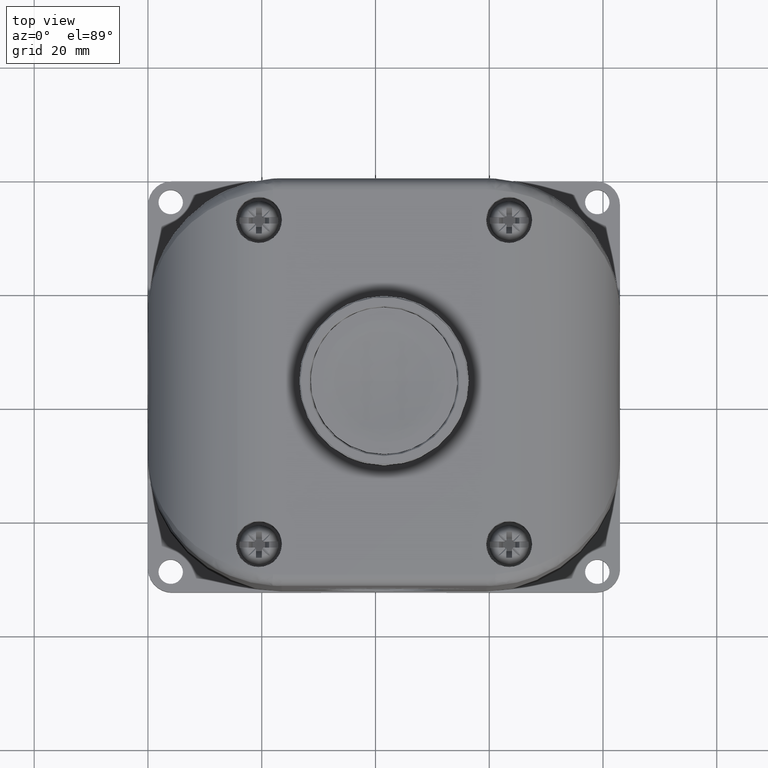
[diagram: clean part render]
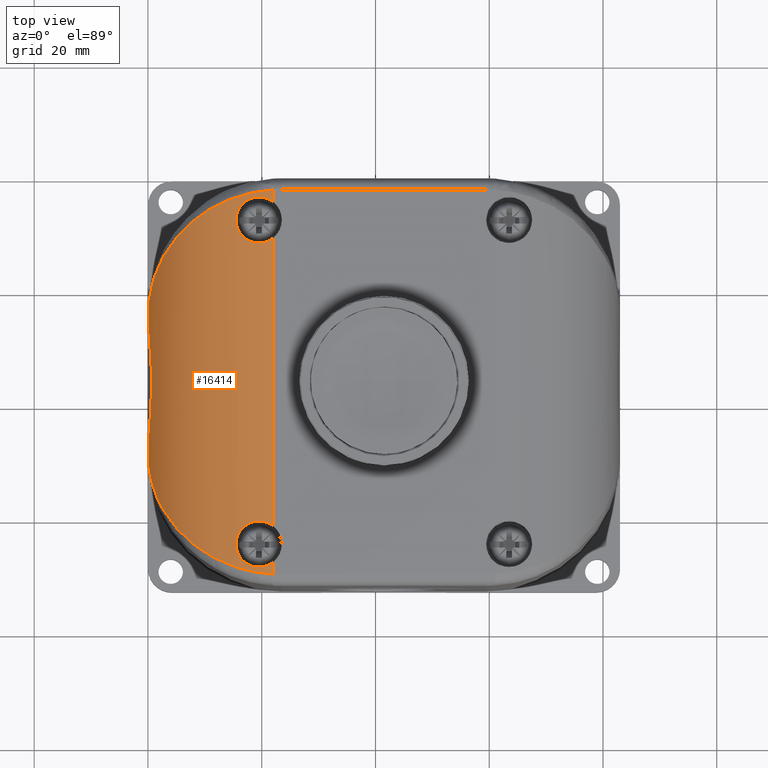
[diagram: same view with one face highlighted and labeled with its STEP entity id]
A machine part, top view. The second image highlights one B-rep face of the part: STEP entity #16414.
In plain terms, the highlighted cylindrical surface (partial cylindrical patch) has radius 22 mm, axis along (0, 1, 0).
Its self-contained STEP definition (entity closure, byte-faithful):
#22 = CARTESIAN_POINT ( 'NONE',  ( 0.06668072959416404544, -2.222230829088615689, 1.566552452995546130 ) ) ;
#30 = CARTESIAN_POINT ( 'NONE',  ( 0.8661417322834669141, -0.1756531276583662704, 2.098425196850787433 ) ) ;
#62 = CARTESIAN_POINT ( 'NONE',  ( 0.6111554180205578390, -2.515317330673027651, 2.060042306304008974 ) ) ;
#174 = CARTESIAN_POINT ( 'NONE',  ( 0.6127212680884354112, -2.508039686794422796, 2.060525093719621559 ) ) ;
#258 = CARTESIAN_POINT ( 'NONE',  ( 0.4844977988254161594, -2.651721927264885537, 2.009811351903006749 ) ) ;
#293 = CARTESIAN_POINT ( 'NONE',  ( 0.7469520531852821277, -2.386969902080728012, 2.090216910384535609 ) ) ;
#395 = CARTESIAN_POINT ( 'NONE',  ( 0.001841612179827192049, -0.9893373802624196856, 1.288735238603178734 ) ) ;
#452 = CARTESIAN_POINT ( 'NONE',  ( 0.001841612179827738487, -1.423117759614849209, 1.288735238603178068 ) ) ;
#487 = CARTESIAN_POINT ( 'NONE',  ( 0.6700205867451447528, -0.1246130479687093950, 2.075929787452275299 ) ) ;
#512 = CARTESIAN_POINT ( 'NONE',  ( 0.001841612179827738487, -1.856898138967279399, 1.288735238603178734 ) ) ;
#600 = CARTESIAN_POINT ( 'NONE',  ( 0.4536305222287483341, -2.635666911687115643, 1.993919880709211334 ) ) ;
#623 = CARTESIAN_POINT ( 'NONE',  ( 0.01495228573200169629, -1.670657243704145811, 1.392656594265216929 ) ) ;
#701 = VECTOR ( 'NONE', #16290, 39.37007874015748143 ) ;
#707 = CARTESIAN_POINT ( 'NONE',  ( 0.2629304045776457710, -0.3480646524808639342, 1.853998062563575910 ) ) ;
#739 = CARTESIAN_POINT ( 'NONE',  ( 0.6090449587852596602, -0.2860909264626071424, 2.059389243528789493 ) ) ;
#745 = CARTESIAN_POINT ( 'NONE',  ( 0.003067005541319931406, -1.956827185950365866, 1.305109946707750490 ) ) ;
#802 = DIRECTION ( 'NONE',  ( 0.000000000000000000, -1.000000000000000000, -0.000000000000000000 ) ) ;
#832 = CARTESIAN_POINT ( 'NONE',  ( 0.03516580050898208964, -0.7105492230839642875, 1.476580539457357011 ) ) ;
#864 = CARTESIAN_POINT ( 'NONE',  ( 0.002106694600387132906, -1.934398326632812415, 1.292659210045730367 ) ) ;
#943 = CARTESIAN_POINT ( 'NONE',  ( 0.3360193584619520224, -0.2865094057192970056, 1.917244771908074519 ) ) ;
#1058 = CARTESIAN_POINT ( 'NONE',  ( 0.2151892366006631918, -0.3966211325848575386, 1.803652474589092281 ) ) ;
#1172 = CARTESIAN_POINT ( 'NONE',  ( 0.2187095246251828939, -0.3927815757087804172, 1.807642949179821157 ) ) ;
#1201 = CARTESIAN_POINT ( 'NONE',  ( 0.7469520531852821277, -0.1428754138917512628, 2.090216910384535609 ) ) ;
#1244 = AXIS2_PLACEMENT_3D ( 'NONE', #2061, #20173, #18728 ) ;
#1289 = CARTESIAN_POINT ( 'NONE',  ( 0.01928830885277802581, -0.7714800606352731904, 1.414091893635173625 ) ) ;
#1323 = CARTESIAN_POINT ( 'NONE',  ( 0.01714522358479216718, -2.064557551439216709, 1.403766628772967318 ) ) ;
#1408 = CARTESIAN_POINT ( 'NONE',  ( 0.003311637220492121610, -0.8854205494936859822, 1.307954879135933224 ) ) ;
#1440 = CARTESIAN_POINT ( 'NONE',  ( 0.04122882106405549585, -2.155045456480146449, 1.496605587609658450 ) ) ;
#1530 = CARTESIAN_POINT ( 'NONE',  ( 0.006387386884334493760, -0.8502011514912803936, 1.337278563807178244 ) ) ;
#1563 = CARTESIAN_POINT ( 'NONE',  ( 0.02194741050311233704, -2.086863128788739363, 1.426391434814828996 ) ) ;
#1564 = CARTESIAN_POINT ( 'NONE',  ( 0.6725834062886715259, -0.4290560969259828439, 2.076543903226812482 ) ) ;
#1606 = VERTEX_POINT ( 'NONE', #6899 ) ;
#1627 = CARTESIAN_POINT ( 'NONE',  ( 0.6090373965461924888, -2.560042691810697768, 2.059386875227419811 ) ) ;
#1648 = CARTESIAN_POINT ( 'NONE',  ( 0.005571515679636032323, -0.8575536688897263948, 1.330580166234773820 ) ) ;
#1680 = CARTESIAN_POINT ( 'NONE',  ( 0.1218463973847920268, -2.326377845508118103, 1.675257610691786470 ) ) ;
#1765 = CARTESIAN_POINT ( 'NONE',  ( 0.009689528871952787087, -0.8242846881517161828, 1.361603842302506751 ) ) ;
#1798 = CARTESIAN_POINT ( 'NONE',  ( 0.09324676695887658406, -2.276703817704357480, 1.623422627752472813 ) ) ;
#2033 = CARTESIAN_POINT ( 'NONE',  ( 0.6049301743320297797, -2.702060913995989022, 2.058250194715752102 ) ) ;
#2061 = CARTESIAN_POINT ( 'NONE',  ( 0.8661417322834645827, -1.423117759614849209, 1.232283464566928943 ) ) ;
#2067 = CARTESIAN_POINT ( 'NONE',  ( 0.6411967913012915909, -2.448163876830064201, 2.068719608081711847 ) ) ;
#2143 = CARTESIAN_POINT ( 'NONE',  ( 0.8326782048970490235, -0.09471166219700458133, 2.098425196850393970 ) ) ;
#2149 = CARTESIAN_POINT ( 'NONE',  ( 0.6391381393690422907, -2.712946202279961305, 2.068214057782333359 ) ) ;
#2237 = CARTESIAN_POINT ( 'NONE',  ( 0.8661417322834666921, -0.4264879033823556487, 2.098425196850787433 ) ) ;
#2266 = CARTESIAN_POINT ( 'NONE',  ( 0.6948248039690440025, -0.1182944640209215165, 2.081387288020791537 ) ) ;
#2271 = CARTESIAN_POINT ( 'NONE',  ( 0.3259294149515184480, -2.551984478871453188, 1.909330076594239589 ) ) ;
#2290 = CARTESIAN_POINT ( 'NONE',  ( 0.009640883770111510417, -1.742034843767567009, 1.361488096049578544 ) ) ;
#2385 = CARTESIAN_POINT ( 'NONE',  ( 0.6803427976469003102, -0.1219138348193207211, 2.078280878011764976 ) ) ;
#2409 = CARTESIAN_POINT ( 'NONE',  ( 0.01097847306639610290, -1.724595519023684576, 1.369977639738063635 ) ) ;
#2494 = CARTESIAN_POINT ( 'NONE',  ( 0.2166540757003893036, -0.3950186641030834500, 1.805318072004846508 ) ) ;
#2524 = CARTESIAN_POINT ( 'NONE',  ( 0.02453863454552830323, -1.383614860935654667, 1.436992346969368395 ) ) ;
#2613 = CARTESIAN_POINT ( 'NONE',  ( 0.04038588785365571782, -0.6939003330629707200, 1.493802092324395092 ) ) ;
#2652 = CARTESIAN_POINT ( 'NONE',  ( 0.003491060863734994375, -1.963817028238295181, 1.310065458575435882 ) ) ;
#2696 = ORIENTED_EDGE ( 'NONE', *, *, #9491, .T. ) ;
#2736 = CARTESIAN_POINT ( 'NONE',  ( 0.4865929929426930367, -0.1934728455591555041, 2.010836264127649375 ) ) ;
#2767 = CARTESIAN_POINT ( 'NONE',  ( 0.006018173853125272608, -1.992659120986880916, 1.334215083290410497 ) ) ;
#2802 = CARTESIAN_POINT ( 'NONE',  ( 0.8661417322834642496, -0.09256890255721490768, 2.098425196850393970 ) ) ;
#2843 = CARTESIAN_POINT ( 'NONE',  ( 0.3964375100164947430, -0.2442628138977407937, 1.960156872947757645 ) ) ;
#2868 = ORIENTED_EDGE ( 'NONE', *, *, #13669, .F. ) ;
#2877 = CARTESIAN_POINT ( 'NONE',  ( 0.002179727015959355158, -1.936887845561044541, 1.293693282701580127 ) ) ;
#2961 = CARTESIAN_POINT ( 'NONE',  ( 0.4989046385369944048, -0.1874683671449827449, 2.016736657529302867 ) ) ;
#2985 = CARTESIAN_POINT ( 'NONE',  ( 0.6085173729111068575, -0.3010705155203608485, 2.059224326939192551 ) ) ;
#3078 = CARTESIAN_POINT ( 'NONE',  ( 0.004940162649394097202, -0.8641853800983396727, 1.324803283652944197 ) ) ;
#3098 = VECTOR ( 'NONE', #7962, 39.37007874015748143 ) ;
#3115 = CARTESIAN_POINT ( 'NONE',  ( 0.002974629534111853605, -1.955231762926801009, 1.304010262587214974 ) ) ;
#3176 = CARTESIAN_POINT ( 'NONE',  ( 0.6725834062886721920, -2.673150585114959288, 2.076543903226812926 ) ) ;
#3195 = CARTESIAN_POINT ( 'NONE',  ( 0.006412864272206790853, -0.8499724481485785299, 1.337487116108978302 ) ) ;
#3222 = CARTESIAN_POINT ( 'NONE',  ( 0.8661417322834669141, -0.1756531276583662704, 2.098425196850787433 ) ) ;
#3229 = CARTESIAN_POINT ( 'NONE',  ( 0.01413497542732325939, -2.049002900311323927, 1.388155252952718355 ) ) ;
#3293 = CARTESIAN_POINT ( 'NONE',  ( 0.8205204874370860546, -2.695772820338141251, 2.097250826054517958 ) ) ;
#3317 = CARTESIAN_POINT ( 'NONE',  ( 0.02138658299294129983, -0.7620091516656880559, 1.423716255014003229 ) ) ;
#3352 = CARTESIAN_POINT ( 'NONE',  ( 0.1222284157239807295, -2.326992693454388750, 1.675898857821539911 ) ) ;
#3420 = CARTESIAN_POINT ( 'NONE',  ( 0.6502906128702815591, -2.653767403531964053, 2.071173551909852861 ) ) ;
#3475 = CARTESIAN_POINT ( 'NONE',  ( 0.01671986241153388189, -2.062460894755395291, 1.401650766611766130 ) ) ;
#3476 = CARTESIAN_POINT ( 'NONE',  ( 0.7767494861681495388, -0.4603881521663730769, 2.093831852209592892 ) ) ;
#3510 = CARTESIAN_POINT ( 'NONE',  ( 0.7913578737794653151, -2.387344832918411264, 2.095222525144633696 ) ) ;
#3583 = CARTESIAN_POINT ( 'NONE',  ( 0.04998219412995857924, -2.179840632931082212, 1.522369127495162733 ) ) ;
#3584 = CARTESIAN_POINT ( 'NONE',  ( 0.6111224735997493607, -0.3307337894535473111, 2.060032139637767656 ) ) ;
#3708 = CARTESIAN_POINT ( 'NONE',  ( 0.8133088647411346184, -0.4540116201021514031, 2.096842758641018989 ) ) ;
#3743 = CARTESIAN_POINT ( 'NONE',  ( 0.6911618647547072003, -2.405243085505956113, 2.080593241783398550 ) ) ;
#3868 = CARTESIAN_POINT ( 'NONE',  ( 0.6188970401195961202, -2.486657168306560806, 2.062397958311684931 ) ) ;
#3935 = VERTEX_POINT ( 'NONE', #2802 ) ;
#3969 = CARTESIAN_POINT ( 'NONE',  ( 0.02357470395147630293, -1.500906264650612831, 1.432994763971830565 ) ) ;
#4086 = CARTESIAN_POINT ( 'NONE',  ( 0.01856980597421693108, -1.230980398208532556, 1.410740652623071467 ) ) ;
#4100 = CARTESIAN_POINT ( 'NONE',  ( 0.8661417322834666921, -2.419747615847342548, 2.098425196850787433 ) ) ;
#4175 = CARTESIAN_POINT ( 'NONE',  ( 0.7489292818998030121, -0.1068327962199640685, 2.090622737733059289 ) ) ;
#4180 = CARTESIAN_POINT ( 'NONE',  ( 0.7318270322642850267, -2.738331237124890016, 2.090626919050186938 ) ) ;
#4287 = CARTESIAN_POINT ( 'NONE',  ( 0.2157749358729827982, -0.3959798241427270882, 1.804319064312383869 ) ) ;
#4309 = CARTESIAN_POINT ( 'NONE',  ( 0.01363177683542894300, -1.688942486081923544, 1.385550100377878735 ) ) ;
#4395 = CARTESIAN_POINT ( 'NONE',  ( 0.1403723760386066943, -0.4912950685527302519, 1.705045898738117627 ) ) ;
#4429 = CARTESIAN_POINT ( 'NONE',  ( 0.003107901000629852660, -1.957515747461784805, 1.305591941913299303 ) ) ;
#4493 = CARTESIAN_POINT ( 'NONE',  ( 0.001841612179827192049, -0.9893373802624196856, 1.288735238603178734 ) ) ;
#4506 = CARTESIAN_POINT ( 'NONE',  ( 0.1819407421365874522, -0.4347133812064869485, 1.764026557412148533 ) ) ;
#4533 = CARTESIAN_POINT ( 'NONE',  ( 0.6911618647547074223, -0.1611485973169795027, 2.080593241783398550 ) ) ;
#4538 = CARTESIAN_POINT ( 'NONE',  ( 0.002195227101025006185, -1.937388755247515970, 1.293910962424854150 ) ) ;
#4619 = CARTESIAN_POINT ( 'NONE',  ( 0.06575158518986988498, -0.6270193950193536647, 1.563416835912435188 ) ) ;
#4652 = CARTESIAN_POINT ( 'NONE',  ( 0.005700370728519489269, -1.989644078267795102, 1.331512063120437128 ) ) ;
#4731 = CARTESIAN_POINT ( 'NONE',  ( 0.4893581734577517883, -0.1921080582985303653, 2.012179245163189467 ) ) ;
#4833 = CARTESIAN_POINT ( 'NONE',  ( 0.6111224735997496937, -2.574828277642525531, 2.060032139637768100 ) ) ;
#4850 = CARTESIAN_POINT ( 'NONE',  ( 0.03075545340105251269, -0.7252501675129466863, 1.461402376867257713 ) ) ;
#4881 = CARTESIAN_POINT ( 'NONE',  ( 0.002801737124562478712, -1.952085798892000845, 1.301910811266506540 ) ) ;
#4916 = CARTESIAN_POINT ( 'NONE',  ( 0.001841612179827192049, -1.915243743866817727, 1.288735238603178068 ) ) ;
#4951 = ORIENTED_EDGE ( 'NONE', *, *, #19881, .T. ) ;
#4976 = CARTESIAN_POINT ( 'NONE',  ( 0.006593813442647857188, -0.8483630860398619911, 1.338957918653440160 ) ) ;
#5001 = CARTESIAN_POINT ( 'NONE',  ( 0.7692112186359622017, -0.1415099728692263970, 2.093016579969819269 ) ) ;
#5009 = CARTESIAN_POINT ( 'NONE',  ( 0.03764124014285433889, -2.143969326075107595, 1.485130129110526331 ) ) ;
#5025 = ORIENTED_EDGE ( 'NONE', *, *, #7627, .T. ) ;
#5064 = CARTESIAN_POINT ( 'NONE',  ( 0.7692252846355088769, -2.704727946057621679, 2.093018637006753391 ) ) ;
#5086 = CARTESIAN_POINT ( 'NONE',  ( 0.003468804263948879925, -0.8829972361969852246, 1.309735358865594224 ) ) ;
#5124 = CARTESIAN_POINT ( 'NONE',  ( 0.02840922800491292935, -2.112282457298313876, 1.452448510443946184 ) ) ;
#5251 = CARTESIAN_POINT ( 'NONE',  ( 0.2109319373285455101, -2.444917006241889457, 1.798769106281482122 ) ) ;
#5293 = CARTESIAN_POINT ( 'NONE',  ( 0.7544173661206144965, -2.386163104624008824, 2.091221580168189043 ) ) ;
#5339 = EDGE_CURVE ( 'NONE', #1606, #17475, #17959, .T. ) ;
#5342 = CARTESIAN_POINT ( 'NONE',  ( 0.002236802406287917346, -0.9075591413723241851, 1.294491026462898153 ) ) ;
#5374 = CARTESIAN_POINT ( 'NONE',  ( 0.2332745324844928969, -2.469481650685676932, 1.824303599944329335 ) ) ;
#5381 = ORIENTED_EDGE ( 'NONE', *, *, #5339, .F. ) ;
#5452 = DIRECTION ( 'NONE',  ( -0.000000000000000000, -1.000000000000000000, -0.000000000000000000 ) ) ;
#5496 = CARTESIAN_POINT ( 'NONE',  ( 0.006327637489400511975, -1.995499639928518087, 1.336788167541607786 ) ) ;
#5618 = CARTESIAN_POINT ( 'NONE',  ( 0.3328871155022073980, -2.557346881135732719, 1.914809841914109745 ) ) ;
#5638 = CARTESIAN_POINT ( 'NONE',  ( 0.02434553202070558267, -1.462088223962763056, 1.436203498315902882 ) ) ;
#5742 = CARTESIAN_POINT ( 'NONE',  ( 0.4215827371818854363, -2.617502393411472728, 1.975781344775984660 ) ) ;
#5853 = CARTESIAN_POINT ( 'NONE',  ( 0.8661417322834645827, -1.423117759614849209, 2.098425196850393970 ) ) ;
#5966 = CARTESIAN_POINT ( 'NONE',  ( 0.6048377028080650364, -0.1437922342536107623, 2.058684024141150370 ) ) ;
#6084 = CARTESIAN_POINT ( 'NONE',  ( 0.6639811400580685197, -2.720002525229793466, 2.074502892225129624 ) ) ;
#6199 = CARTESIAN_POINT ( 'NONE',  ( 0.05305894278109316714, -0.6580783604178528368, 1.531025874868270575 ) ) ;
#6226 = CARTESIAN_POINT ( 'NONE',  ( 0.6726007365587882703, -0.1730737280484004881, 2.076547688764718291 ) ) ;
#6230 = CARTESIAN_POINT ( 'NONE',  ( 0.001961098896333543940, -1.928082369085000858, 1.290537534212114590 ) ) ;
#6318 = CARTESIAN_POINT ( 'NONE',  ( 0.2228368030460637639, -0.3883298723796335672, 1.812268120594828114 ) ) ;
#6343 = CARTESIAN_POINT ( 'NONE',  ( 0.6368620901716152138, -0.2100143708534818743, 2.067537269189749338 ) ) ;
#6432 = CARTESIAN_POINT ( 'NONE',  ( 0.1104171091250973347, -0.5381918457097129016, 1.656136480007502687 ) ) ;
#6547 = CARTESIAN_POINT ( 'NONE',  ( 0.2148634714822769687, -0.3969784201646139321, 1.803281084816593438 ) ) ;
#6575 = CARTESIAN_POINT ( 'NONE',  ( 0.6111554180205579501, -0.2712228424840500418, 2.060042306304008530 ) ) ;
#6640 = CARTESIAN_POINT ( 'NONE',  ( 0.6667009104390833052, -2.668550439203207336, 2.075169313886292777 ) ) ;
#6660 = CARTESIAN_POINT ( 'NONE',  ( 0.01829001995562692245, -0.7761601688407657740, 1.409349239104531248 ) ) ;
#6774 = CARTESIAN_POINT ( 'NONE',  ( 0.002938455177338896579, -0.8914969400314728398, 1.303617612783680713 ) ) ;
#6808 = CARTESIAN_POINT ( 'NONE',  ( 0.01723116111628603467, -2.064978305770995615, 1.404191549162344899 ) ) ;
#6893 = CARTESIAN_POINT ( 'NONE',  ( 0.02759000802795056814, -0.7368330981657280621, 1.449477108665896852 ) ) ;
#6899 = CARTESIAN_POINT ( 'NONE',  ( 0.8661417322834669141, -2.670582391571332259, 2.098425196850787433 ) ) ;
#6930 = CARTESIAN_POINT ( 'NONE',  ( 0.01501890704692845913, -2.053798567373785744, 1.392941095868765577 ) ) ;
#6931 = CARTESIAN_POINT ( 'NONE',  ( 0.7692252846355086549, -0.4606334578686454573, 2.093018637006753835 ) ) ;
#7018 = CARTESIAN_POINT ( 'NONE',  ( 0.02336684735894668102, -0.7537014710198722822, 1.432201290097663726 ) ) ;
#7053 = CARTESIAN_POINT ( 'NONE',  ( 0.006303352515200720541, -1.995279798930462256, 1.336588168333578297 ) ) ;
#7172 = CARTESIAN_POINT ( 'NONE',  ( 0.2127420073568618009, -2.446921566156667893, 1.800853061853247894 ) ) ;
#7173 = CARTESIAN_POINT ( 'NONE',  ( 0.6249487372184516776, -0.3731394959535539457, 2.064206118165317960 ) ) ;
#7289 = CARTESIAN_POINT ( 'NONE',  ( 0.2528008908898430329, -2.488946137196759167, 1.844476479491946153 ) ) ;
#7411 = CARTESIAN_POINT ( 'NONE',  ( 0.6277165968349019964, -2.709413271700443548, 2.065000529012364971 ) ) ;
#7627 = EDGE_CURVE ( 'NONE', #22946, #15856, #15950, .T. ) ;
#7761 = CARTESIAN_POINT ( 'NONE',  ( 0.6679582204730580841, -0.1251631294307466724, 2.075447693819880257 ) ) ;
#7789 = CARTESIAN_POINT ( 'NONE',  ( 0.02454428000673034710, -1.442449904734850685, 1.437015554840284537 ) ) ;
#7876 = CARTESIAN_POINT ( 'NONE',  ( 0.5598072040365266178, -0.1607815647096981215, 2.042601119735038662 ) ) ;
#7906 = CARTESIAN_POINT ( 'NONE',  ( 0.02080029465139045242, -1.577489249876136368, 1.421073909155596837 ) ) ;
#7962 = DIRECTION ( 'NONE',  ( -0.000000000000000000, -1.000000000000000000, -0.000000000000000000 ) ) ;
#7995 = CARTESIAN_POINT ( 'NONE',  ( 0.05801324740883753023, -0.6456917170297087338, 1.543941141165006359 ) ) ;
#8014 = ORIENTED_EDGE ( 'NONE', *, *, #8038, .T. ) ;
#8038 = EDGE_CURVE ( 'NONE', #3935, #18886, #14520, .T. ) ;
#8105 = CARTESIAN_POINT ( 'NONE',  ( 0.4342555384053536360, -0.2209125017929190193, 1.983653436353031818 ) ) ;
#8133 = CARTESIAN_POINT ( 'NONE',  ( 0.004967025211732417969, -1.982145295057053058, 1.324955265658127379 ) ) ;
#8191 = CARTESIAN_POINT ( 'NONE',  ( 0.001841612179827738487, -1.856898138967279399, 1.288735238603178734 ) ) ;
#8219 = CARTESIAN_POINT ( 'NONE',  ( 0.1513583501783736796, -0.4753898956740735815, 1.721632139815546303 ) ) ;
#8255 = VECTOR ( 'NONE', #5452, 39.37007874015748143 ) ;
#8327 = CARTESIAN_POINT ( 'NONE',  ( 0.3367672010064692856, -0.2859430273797861632, 1.917822908666178661 ) ) ;
#8371 = CARTESIAN_POINT ( 'NONE',  ( 0.6085173729111068575, -0.3010705155203608485, 2.059224326939192551 ) ) ;
#8441 = CARTESIAN_POINT ( 'NONE',  ( 0.05947551391623354805, -0.6420747848030463611, 1.547712835560338229 ) ) ;
#8470 = CARTESIAN_POINT ( 'NONE',  ( 0.7544173661206150516, -0.1420686164350324354, 2.091221580168189043 ) ) ;
#8555 = CARTESIAN_POINT ( 'NONE',  ( 0.01455538379879572214, -0.7943015168519412805, 1.391015471066883613 ) ) ;
#8592 = CARTESIAN_POINT ( 'NONE',  ( 0.01146569534590667627, -2.033546146745440542, 1.372864351193517463 ) ) ;
#8600 = B_SPLINE_CURVE_WITH_KNOTS ( 'NONE', 3,
 ( #19308, #15734, #23013, #6230, #13949, #864, #19429, #2877, #4538, #21219, #13485, #11820, #13717, #4881, #3115, #745, #4429, #20761, #20990, #2652, #9916, #17175, #8133, #15382, #4652, #2767, #11931, #12288, #7053, #5496, #18115, #21347, #19900, #8592, #8709, #3229, #6930, #10860, #3475, #17879, #1323, #6808, #12641, #17759, #1563, #8831, #5124, #14066, #21462, #15973, #10743, #21714, #5009, #1440, #12405, #3583, #21832, #19540, #23134, #19660, #8956, #22, #10501, #1798, #12519, #17993, #9072, #15848, #23260, #14189, #1680, #3352, #10619, #16094, #16216, #23384, #16330, #14308, #23506, #21586, #5251, #7172, #19782, #12753, #14425, #5374, #7289, #14544, #20020, #10382, #17641, #2271, #11215, #5618, #11455, #18697, #9543, #13226, #18471, #5742, #10976, #600, #16567, #16800, #12996, #15013, #258, #20386, #14778, #18232, #22080, #22419, #2033, #7411, #2149, #18355, #15128, #9421, #6084, #20264, #4180, #11098, #13344 ),
 .UNSPECIFIED., .F., .F.,
 ( 4, 2, 1, 1, 1, 2, 2, 2, 1, 1, 1, 2, 2, 2, 2, 1, 1, 1, 1, 2, 2, 2, 2, 1, 1, 1, 1, 2, 2, 2, 1, 1, 1, 2, 2, 2, 1, 1, 1, 2, 2, 2, 2, 1, 1, 1, 1, 2, 2, 2, 2, 1, 1, 1, 1, 2, 2, 2, 2, 1, 1, 1, 1, 2, 2, 2, 2, 1, 1, 1, 1, 2, 2, 2, 2, 1, 1, 1, 2, 2, 4 ),
 ( 0.000000000000000000, 0.007812499999993839997, 0.01171874999999082158, 0.01367187499998931410, 0.01464843749998865144, 0.01513671874998809286, 0.01562499999998753428, 0.02343749999998132744, 0.02734374999997845473, 0.02929687499997687961, 0.03027343749997609204, 0.03076171874997563754, 0.03124999999997518305, 0.04687499999995500821, 0.05468749999994471783, 0.05859374999993956917, 0.06054687499993698097, 0.06152343749993551686, 0.06201171874993494787, 0.06225585937493483685, 0.06249999999993471889, 0.09374999999993556543, 0.1093749999999359956, 0.1171874999999363703, 0.1210937499999365646, 0.1230468749999368144, 0.1240234374999366201, 0.1245117187499363842, 0.1249999999999361344, 0.1562499999999268918, 0.1718749999999220901, 0.1796874999999195088, 0.1835937499999183986, 0.1855468749999182043, 0.1874999999999179823, 0.2187499999999163447, 0.2343749999999155120, 0.2421874999999149292, 0.2460937499999144573, 0.2480468749999143740, 0.2499999999999143463, 0.3124999999999175659, 0.3437499999999191758, 0.3593749999999200084, 0.3671874999999203970, 0.3710937499999207856, 0.3730468749999209521, 0.3740234374999210631, 0.3749999999999211742, 0.4374999999999219513, 0.4687499999999223399, 0.4843749999999226730, 0.4921874999999230060, 0.4960937499999230060, 0.4980468749999228950, 0.4990234374999227840, 0.4999999999999227285, 0.5624999999999177325, 0.5937499999999154010, 0.6093749999999139577, 0.6171874999999129585, 0.6210937499999127365, 0.6230468749999121814, 0.6240234374999122924, 0.6249999999999124034, 0.6874999999999376055, 0.7187499999999504841, 0.7343749999999572564, 0.7421874999999605871, 0.7460937499999619194, 0.7480468749999623634, 0.7490234374999624745, 0.7499999999999625855, 0.8124999999999739098, 0.8437499999999796829, 0.8593749999999824585, 0.8671874999999835687, 0.8710937499999841238, 0.8730468749999845679, 0.8749999999999849010, 1.000000000000000000 ),
 .UNSPECIFIED. ) ;
#8657 = CARTESIAN_POINT ( 'NONE',  ( 0.8542576590813109050, -2.679908787729363251, 2.098425196850393082 ) ) ;
#8675 = CARTESIAN_POINT ( 'NONE',  ( 0.001841828049148678398, -0.9239390006351970719, 1.288738543652189428 ) ) ;
#8709 = CARTESIAN_POINT ( 'NONE',  ( 0.01245953654878545133, -2.039587833956062024, 1.378804179993215584 ) ) ;
#8710 = CARTESIAN_POINT ( 'NONE',  ( 0.8661417322834666921, -0.4264879033823556487, 2.098425196850787433 ) ) ;
#8776 = CARTESIAN_POINT ( 'NONE',  ( 0.8413564850316759269, -2.687355672329298173, 2.098182146856145458 ) ) ;
#8783 = VECTOR ( 'NONE', #13223, 39.37007874015748143 ) ;
#8799 = CARTESIAN_POINT ( 'NONE',  ( 0.002304949363058869573, -0.9055619894650400736, 1.295432310438345613 ) ) ;
#8831 = CARTESIAN_POINT ( 'NONE',  ( 0.02616767881312343988, -2.103724479404983416, 1.443660388706822228 ) ) ;
#8832 = CARTESIAN_POINT ( 'NONE',  ( 0.6502906128702817812, -0.4096729153429876091, 2.071173551909852417 ) ) ;
#8837 = EDGE_CURVE ( 'NONE', #21935, #21079, #17040, .T. ) ;
#8919 = CARTESIAN_POINT ( 'NONE',  ( 0.004160169365797937099, -0.8735085415469259207, 1.317112266328130721 ) ) ;
#8956 = CARTESIAN_POINT ( 'NONE',  ( 0.05710976054165210064, -2.198288129865812124, 1.541588209923444364 ) ) ;
#8957 = CARTESIAN_POINT ( 'NONE',  ( 0.7108928996926785482, -0.4506625509602775748, 2.084503996820070260 ) ) ;
#9026 = LINE ( 'NONE', #21909, #8255 ) ;
#9041 = CARTESIAN_POINT ( 'NONE',  ( 0.002516271874809164824, -0.9001967256225499314, 1.298265202631562865 ) ) ;
#9072 = CARTESIAN_POINT ( 'NONE',  ( 0.1120283339338624395, -2.310220319050889870, 1.658403227684009273 ) ) ;
#9086 = B_SPLINE_CURVE_WITH_KNOTS ( 'NONE', 3,
 ( #8710, #23261, #12642, #12754, #3708, #19783, #10620, #3476, #6931, #21464, #17994, #18116, #8957, #19901, #17881, #1564, #16217, #8832, #18234, #7173, #14426, #21715, #3584, #15129, #16682, #20145 ),
 .UNSPECIFIED., .F., .F.,
 ( 4, 2, 2, 2, 2, 2, 2, 2, 2, 2, 2, 2, 4 ),
 ( 1.304161371202573855E-16, 0.001134861824668662597, 0.001702292737002928302, 0.002269723649337194223, 0.002837154561671459494, 0.003404585474005725632, 0.004539447298674260077, 0.005106878211008525348, 0.005674309123342790619, 0.006809170948011320293, 0.007944032772679849100, 0.008511463685014118707, 0.009078894597348384846 ),
 .UNSPECIFIED. ) ;
#9110 = CARTESIAN_POINT ( 'NONE',  ( 0.6847471891410117362, -2.408961949764549804, 2.079240498308626339 ) ) ;
#9167 = VERTEX_POINT ( 'NONE', #4916 ) ;
#9340 = CARTESIAN_POINT ( 'NONE',  ( 0.7111060864151816929, -2.395479636505880805, 2.084544678014398134 ) ) ;
#9421 = CARTESIAN_POINT ( 'NONE',  ( 0.6620673134544026173, -2.719479358924865142, 2.074041209380371065 ) ) ;
#9491 = EDGE_CURVE ( 'NONE', #15739, #21935, #9086, .T. ) ;
#9543 = CARTESIAN_POINT ( 'NONE',  ( 0.3348395193226803568, -2.558835540549571519, 1.916330014393507142 ) ) ;
#9680 = CARTESIAN_POINT ( 'NONE',  ( 0.02152459155223845205, -1.287633214198650622, 1.424205414149508853 ) ) ;
#9763 = CARTESIAN_POINT ( 'NONE',  ( 0.1349515773415710662, -0.4993407235568174674, 1.696654880190145098 ) ) ;
#9883 = CARTESIAN_POINT ( 'NONE',  ( 0.04894961203095116176, -0.6690621056982219983, 1.519589278893925366 ) ) ;
#9916 = CARTESIAN_POINT ( 'NONE',  ( 0.003899485775766863786, -1.969613608934360771, 1.314541304790701748 ) ) ;
#10001 = CARTESIAN_POINT ( 'NONE',  ( 0.3839716860769418205, -0.2523709791552594672, 1.951962622884685805 ) ) ;
#10118 = CARTESIAN_POINT ( 'NONE',  ( 0.3405120112917421338, -0.2831209663116912023, 1.920702770897699363 ) ) ;
#10145 = CARTESIAN_POINT ( 'NONE',  ( 0.6251004410052539706, -0.2287402789924408431, 2.064249139571173064 ) ) ;
#10236 = CARTESIAN_POINT ( 'NONE',  ( 0.4925362150693371466, -0.1905510620934914301, 2.013710061553795949 ) ) ;
#10264 = CARTESIAN_POINT ( 'NONE',  ( 0.7250469596165671771, -0.1468133339915977942, 2.086983220119176696 ) ) ;
#10345 = CARTESIAN_POINT ( 'NONE',  ( 0.003184271608880845286, -0.8874614954386648158, 1.306485460303036472 ) ) ;
#10375 = CARTESIAN_POINT ( 'NONE',  ( 0.8204096317628268853, -0.1504267633095977830, 2.097244569625063892 ) ) ;
#10382 = CARTESIAN_POINT ( 'NONE',  ( 0.3088617695578599331, -2.538356647986454995, 1.895372549475944135 ) ) ;
#10464 = CARTESIAN_POINT ( 'NONE',  ( 0.01739266215865966497, -0.7804729570286056406, 1.404987099276469920 ) ) ;
#10501 = CARTESIAN_POINT ( 'NONE',  ( 0.07686398077680078877, -2.244555512323572088, 1.589861455184243377 ) ) ;
#10562 = CARTESIAN_POINT ( 'NONE',  ( 0.7469714852096157598, -2.703360503351357469, 2.090219218594270068 ) ) ;
#10584 = CARTESIAN_POINT ( 'NONE',  ( 0.03455055679514910938, -0.7125848706474721128, 1.474478135648456645 ) ) ;
#10619 = CARTESIAN_POINT ( 'NONE',  ( 0.1223946829250967955, -2.327259964338925347, 1.676177601286038099 ) ) ;
#10620 = CARTESIAN_POINT ( 'NONE',  ( 0.7915283417912050146, -0.4588656622867816615, 2.095237368245719711 ) ) ;
#10685 = CARTESIAN_POINT ( 'NONE',  ( 0.6249487372184507894, -2.617233984142530723, 2.064206118165317516 ) ) ;
#10743 = CARTESIAN_POINT ( 'NONE',  ( 0.03386415409143958555, -2.131356496240828235, 1.472108752223620920 ) ) ;
#10860 = CARTESIAN_POINT ( 'NONE',  ( 0.01613770803220338293, -2.059547746578449967, 1.398715832334957554 ) ) ;
#10976 = CARTESIAN_POINT ( 'NONE',  ( 0.4343304444839510836, -2.624962745625559979, 1.983253920563294415 ) ) ;
#10995 = CARTESIAN_POINT ( 'NONE',  ( 0.001841612179827192049, -0.9309917753628805803, 1.288735238603178068 ) ) ;
#11011 = CARTESIAN_POINT ( 'NONE',  ( 0.7250469596165667330, -2.390907822180575071, 2.086983220119176252 ) ) ;
#11080 = B_SPLINE_CURVE_WITH_KNOTS ( 'NONE', 3,
 ( #17467, #8657, #8776, #3293, #21405, #17939, #22849, #19488, #5064, #16037, #10562, #19258, #17818, #14012, #19724, #3176, #6640, #3420, #21290, #10685, #15798, #14133, #4833, #1627, #17704, #19377 ),
 .UNSPECIFIED., .F., .F.,
 ( 4, 2, 2, 2, 2, 2, 2, 2, 2, 2, 2, 2, 4 ),
 ( 1.241267076623636559E-16, 0.001134861824668647852, 0.001702292737002901631, 0.002269723649337155626, 0.002837154561671409187, 0.003404585474005663182, 0.004539447298674174208, 0.005106878211008440346, 0.005674309123342707352, 0.006809170948011264782, 0.007944032772679823079, 0.008511463685014101360, 0.009078894597348379641 ),
 .UNSPECIFIED. ) ;
#11098 = CARTESIAN_POINT ( 'NONE',  ( 0.7991929221750214696, -2.749379704340318309, 2.098425196850393970 ) ) ;
#11137 = CARTESIAN_POINT ( 'NONE',  ( 0.6251004410052536375, -2.472834767181417259, 2.064249139571172620 ) ) ;
#11215 = CARTESIAN_POINT ( 'NONE',  ( 0.3305645472577815047, -2.555566918347068839, 1.912991591419756165 ) ) ;
#11355 = CARTESIAN_POINT ( 'NONE',  ( 0.02372975983920159668, -1.344919695255675007, 1.433743545148280507 ) ) ;
#11455 = CARTESIAN_POINT ( 'NONE',  ( 0.3338835630233740748, -2.558107310127487377, 1.915586412689353812 ) ) ;
#11562 = CARTESIAN_POINT ( 'NONE',  ( 0.1228518866512448293, -0.5182413071731277743, 1.676942710329017316 ) ) ;
#11625 = ORIENTED_EDGE ( 'NONE', *, *, #20207, .T. ) ;
#11672 = CARTESIAN_POINT ( 'NONE',  ( 0.1230931840978583131, -0.5178547425097527190, 1.677345856665748203 ) ) ;
#11788 = CARTESIAN_POINT ( 'NONE',  ( 0.5448988047944555158, -0.1668262058218034083, 2.036809202536495889 ) ) ;
#11814 = CARTESIAN_POINT ( 'NONE',  ( 0.6188970401195957871, -0.2425626801175847502, 2.062397958311683599 ) ) ;
#11820 = CARTESIAN_POINT ( 'NONE',  ( 0.002437917174635186902, -1.944329586322660175, 1.297255138710769806 ) ) ;
#11900 = CARTESIAN_POINT ( 'NONE',  ( 0.05859710260768357520, -0.6442438960651571955, 1.545450874317812806 ) ) ;
#11931 = CARTESIAN_POINT ( 'NONE',  ( 0.006183065021602963084, -1.994183750870158756, 1.335593048950920458 ) ) ;
#12016 = CARTESIAN_POINT ( 'NONE',  ( 0.4600277232704113040, -0.2066445386133494988, 1.997868281788691469 ) ) ;
#12137 = CARTESIAN_POINT ( 'NONE',  ( 0.01756304682546144108, -0.7796460359976921106, 1.405822852039311011 ) ) ;
#12153 = CARTESIAN_POINT ( 'NONE',  ( 0.6085173729111068575, -2.545165003709337626, 2.059224326939192551 ) ) ;
#12253 = CARTESIAN_POINT ( 'NONE',  ( 0.002256609150573041147, -0.9069633594796889797, 1.294765898719175024 ) ) ;
#12288 = CARTESIAN_POINT ( 'NONE',  ( 0.006267035459765460739, -1.994950342942731547, 1.336288641402763711 ) ) ;
#12405 = CARTESIAN_POINT ( 'NONE',  ( 0.04699952291753255879, -2.171587585253189623, 1.513786644111892787 ) ) ;
#12439 = CARTESIAN_POINT ( 'NONE',  ( 0.6085173729111068575, -2.537717218982983969, 2.059224326939192107 ) ) ;
#12519 = CARTESIAN_POINT ( 'NONE',  ( 0.09889244740202095263, -2.287196799586012297, 1.634376330261018584 ) ) ;
#12557 = CARTESIAN_POINT ( 'NONE',  ( 0.7692112186359619797, -2.385604461058203007, 2.093016579969819269 ) ) ;
#12641 = CARTESIAN_POINT ( 'NONE',  ( 0.01728366614373079077, -2.065234718128599045, 1.404450572057515112 ) ) ;
#12642 = CARTESIAN_POINT ( 'NONE',  ( 0.8413564850316753718, -0.4432611841403224506, 2.098182146856145458 ) ) ;
#12753 = CARTESIAN_POINT ( 'NONE',  ( 0.2140371492868342329, -2.448349276744439695, 1.802337206234785549 ) ) ;
#12754 = CARTESIAN_POINT ( 'NONE',  ( 0.8205204874370852774, -0.4516783321491651404, 2.097250826054517070 ) ) ;
#12790 = CARTESIAN_POINT ( 'NONE',  ( 0.6668307867890511664, -2.421673828940606121, 2.075200010190961564 ) ) ;
#12900 = CARTESIAN_POINT ( 'NONE',  ( 0.01867239427389003059, -1.615114764924735491, 1.411624699434567365 ) ) ;
#12937 = CARTESIAN_POINT ( 'NONE',  ( 0.8661417322834666921, -2.419747615847342548, 2.098425196850787433 ) ) ;
#12996 = CARTESIAN_POINT ( 'NONE',  ( 0.4804142218592089564, -2.649678394863316466, 2.007797227999430056 ) ) ;
#13174 = VERTEX_POINT ( 'NONE', #12937 ) ;
#13223 = DIRECTION ( 'NONE',  ( 0.000000000000000000, -1.000000000000000000, -0.000000000000000000 ) ) ;
#13226 = CARTESIAN_POINT ( 'NONE',  ( 0.3591144811824232286, -2.577282458783615393, 1.935163262540559037 ) ) ;
#13341 = CARTESIAN_POINT ( 'NONE',  ( 0.3378895079693802761, -0.2850944112217574933, 1.918689066786935848 ) ) ;
#13344 = CARTESIAN_POINT ( 'NONE',  ( 0.8661417322834642496, -2.753666616672483691, 2.098425196850393082 ) ) ;
#13454 = CARTESIAN_POINT ( 'NONE',  ( 0.2530074492905124983, -0.3575208236733608547, 1.844218434914367544 ) ) ;
#13485 = CARTESIAN_POINT ( 'NONE',  ( 0.002311959477906495777, -1.941041961224561296, 1.295541794829737192 ) ) ;
#13569 = CARTESIAN_POINT ( 'NONE',  ( 0.06154343278115360916, -0.6370318664844656364, 1.552972245795176010 ) ) ;
#13596 = CARTESIAN_POINT ( 'NONE',  ( 0.6507020688173653644, -0.1927713513907690912, 2.071218146206070809 ) ) ;
#13669 = EDGE_CURVE ( 'NONE', #3935, #21079, #15241, .T. ) ;
#13684 = CARTESIAN_POINT ( 'NONE',  ( 0.5227275525046813920, -0.1764654639300758110, 2.027476835268931410 ) ) ;
#13717 = CARTESIAN_POINT ( 'NONE',  ( 0.002672779214354295725, -1.949466198883304635, 1.300282670861086176 ) ) ;
#13795 = CARTESIAN_POINT ( 'NONE',  ( 0.1235264092792596330, -0.5171619735824386499, 1.678068345267048844 ) ) ;
#13819 = CARTESIAN_POINT ( 'NONE',  ( 0.6668307867890516105, -0.1775793407516293443, 2.075200010190961564 ) ) ;
#13912 = CARTESIAN_POINT ( 'NONE',  ( 0.01736808571150140132, -0.7805924711310189279, 1.404866327469994181 ) ) ;
#13949 = CARTESIAN_POINT ( 'NONE',  ( 0.002018000065491720382, -1.930959834007425435, 1.291380822648619864 ) ) ;
#14012 = CARTESIAN_POINT ( 'NONE',  ( 0.6911231256759767794, -2.685062381047816693, 2.080584779871274215 ) ) ;
#14034 = CARTESIAN_POINT ( 'NONE',  ( 0.003928147118053683037, -0.8765121944690660305, 1.314710936820440157 ) ) ;
#14066 = CARTESIAN_POINT ( 'NONE',  ( 0.03127270476532211657, -2.122489544364647429, 1.462961907199950451 ) ) ;
#14133 = CARTESIAN_POINT ( 'NONE',  ( 0.6127087765380921924, -2.582246262243626855, 2.060521301903373903 ) ) ;
#14158 = CARTESIAN_POINT ( 'NONE',  ( 0.01746072880264614574, -0.7801422874488816994, 1.405321274915993346 ) ) ;
#14189 = CARTESIAN_POINT ( 'NONE',  ( 0.1212737988226737784, -2.325454919917095520, 1.674295046109449014 ) ) ;
#14308 = CARTESIAN_POINT ( 'NONE',  ( 0.1940827748359010285, -2.425630269622325752, 1.778707609598687345 ) ) ;
#14343 = CARTESIAN_POINT ( 'NONE',  ( 0.6090449587852594382, -2.530185414651584086, 2.059389243528789493 ) ) ;
#14390 = CARTESIAN_POINT ( 'NONE',  ( 0.008903529880688054038, -0.8298580780601786389, 1.356259571244913475 ) ) ;
#14425 = CARTESIAN_POINT ( 'NONE',  ( 0.2142632745757037660, -2.448598057562338948, 1.802595812195743719 ) ) ;
#14426 = CARTESIAN_POINT ( 'NONE',  ( 0.6189180320872074148, -0.3596526483126163964, 2.062404331589687168 ) ) ;
#14520 = B_SPLINE_CURVE_WITH_KNOTS ( 'NONE', 3,
 ( #18466, #2143, #16675, #4175, #14898, #20379, #2266, #2385, #16794, #487, #7761, #15008, #22299, #5966, #7876, #11788, #13684, #22982, #2961, #10236, #4731, #20722, #19044, #2736, #12016, #8105, #2843, #10001, #17255, #19276, #15353, #10118, #13341, #8327, #943, #15240, #17371, #22761, #707, #13454, #20609, #15586, #6318, #1172, #2494, #4287, #1058, #6547, #17489, #4506, #17144, #8219, #4395, #9763, #20839, #22869, #15473, #13795, #11672, #11562, #6432, #22528, #18813, #20957, #21072, #4619, #13569, #8441, #11900, #7995, #17016, #6199, #9883, #18928, #2613, #15702, #19163, #832, #22641, #10584, #4850, #6893, #7018, #3317, #1289, #6660, #17604, #12137, #14158, #10464, #13912, #8555, #17844, #1765, #14390, #15816, #16180, #19398, #4976, #23100, #3195, #1530, #19752, #23474, #1648, #3078, #8919, #14034, #21427, #5086, #1408, #21188, #17723, #10345, #17964, #6774, #21312, #9041, #18080, #8799, #12253, #5342, #19870, #23352, #19509, #8675, #15940 ),
 .UNSPECIFIED., .F., .F.,
 ( 4, 2, 2, 1, 1, 1, 2, 2, 2, 2, 1, 1, 1, 1, 2, 2, 2, 2, 1, 1, 1, 1, 2, 2, 2, 2, 1, 1, 1, 1, 2, 2, 2, 2, 1, 1, 1, 1, 2, 2, 2, 2, 1, 1, 1, 2, 2, 2, 1, 1, 1, 2, 2, 2, 1, 1, 1, 1, 1, 2, 2, 2, 2, 1, 1, 1, 1, 1, 2, 2, 2, 2, 1, 1, 1, 2, 2, 2, 1, 1, 1, 2, 2, 4 ),
 ( 0.000000000000000000, 0.06250000000001093570, 0.09375000000001655620, 0.1093750000000192485, 0.1171875000000205946, 0.1210937500000212608, 0.1230468750000214273, 0.1250000000000215938, 0.1875000000000238143, 0.2187500000000247857, 0.2343750000000253964, 0.2421875000000257294, 0.2460937500000259237, 0.2480468750000259515, 0.2490234375000260347, 0.2500000000000260902, 0.3125000000000340283, 0.3437500000000379141, 0.3593750000000398570, 0.3671875000000407452, 0.3710937500000413003, 0.3730468750000414113, 0.3740234375000414668, 0.3750000000000415223, 0.4375000000000588418, 0.4687500000000676681, 0.4843750000000721090, 0.4921875000000742739, 0.4960937500000754397, 0.4980468750000760503, 0.4990234375000762723, 0.5000000000000764944, 0.5625000000000899281, 0.5937500000000968114, 0.6093750000001003642, 0.6171875000001022515, 0.6210937500001030287, 0.6230468750001033618, 0.6240234375001033618, 0.6250000000001034728, 0.6875000000000973666, 0.7187500000000943690, 0.7343750000000925926, 0.7421875000000919265, 0.7460937500000915934, 0.7480468750000913714, 0.7500000000000911493, 0.7812500000000884848, 0.7968750000000872635, 0.8046875000000862643, 0.8085937500000855982, 0.8105468750000854872, 0.8125000000000853762, 0.8437500000000835998, 0.8593750000000826006, 0.8671875000000822675, 0.8710937500000820455, 0.8730468750000821565, 0.8740234375000824896, 0.8745117187500823785, 0.8750000000000822675, 0.9062500000000773825, 0.9218750000000751621, 0.9296875000000738298, 0.9335937500000730527, 0.9355468750000726086, 0.9365234375000726086, 0.9370117187500726086, 0.9372558593750726086, 0.9375000000000726086, 0.9531250000000589528, 0.9609375000000524025, 0.9648437500000491829, 0.9667968750000475175, 0.9677734375000465183, 0.9682617187500458522, 0.9687500000000451861, 0.9765625000000340838, 0.9804687500000284217, 0.9824218750000254241, 0.9833984375000238698, 0.9838867187500232037, 0.9843750000000224265, 1.000000000000000000 ),
 .UNSPECIFIED. ) ;
#14544 = CARTESIAN_POINT ( 'NONE',  ( 0.2830478490477842946, -2.516496136117068794, 1.872903841581655016 ) ) ;
#14778 = CARTESIAN_POINT ( 'NONE',  ( 0.4856793762081996202, -2.652309665682036410, 2.010390237775343980 ) ) ;
#14811 = CYLINDRICAL_SURFACE ( 'NONE', #1244, 0.8661417322834645827 ) ;
#14898 = CARTESIAN_POINT ( 'NONE',  ( 0.7322337922919747166, -0.1100179994534479511, 2.088178052536761697 ) ) ;
#14924 = CARTESIAN_POINT ( 'NONE',  ( 0.02300286679731414208, -1.520163449400081523, 1.430598802716653850 ) ) ;
#14941 = EDGE_CURVE ( 'NONE', #15739, #13174, #20227, .T. ) ;
#14966 = EDGE_CURVE ( 'NONE', #15856, #9167, #16989, .T. ) ;
#15008 = CARTESIAN_POINT ( 'NONE',  ( 0.6668541394358110663, -0.1254596035219265049, 2.075187328497238859 ) ) ;
#15013 = CARTESIAN_POINT ( 'NONE',  ( 0.4832721181255522636, -2.651110862389618461, 2.009209335939402763 ) ) ;
#15037 = CARTESIAN_POINT ( 'NONE',  ( 0.003412497235308062978, -1.825827447706282136, 1.312786141613752067 ) ) ;
#15053 = CARTESIAN_POINT ( 'NONE',  ( 0.7987841407396106819, -2.388630174254685823, 2.095832879722907105 ) ) ;
#15128 = CARTESIAN_POINT ( 'NONE',  ( 0.6591971848118020061, -2.718690132958948347, 2.073343653921018159 ) ) ;
#15129 = CARTESIAN_POINT ( 'NONE',  ( 0.6090373965461924888, -0.3159482036217214351, 2.059386875227420255 ) ) ;
#15240 = CARTESIAN_POINT ( 'NONE',  ( 0.3356046530682575413, -0.2868240366497266103, 1.916923578172535336 ) ) ;
#15241 = LINE ( 'NONE', #5853, #8783 ) ;
#15267 = CARTESIAN_POINT ( 'NONE',  ( 0.6558971625211376111, -0.1874065299168282683, 2.072539602161937999 ) ) ;
#15353 = CARTESIAN_POINT ( 'NONE',  ( 0.3457720467509912687, -0.2792007143262223434, 1.924700834376695591 ) ) ;
#15382 = CARTESIAN_POINT ( 'NONE',  ( 0.005447758449421745072, -1.987118413732809286, 1.329286007896509858 ) ) ;
#15473 = CARTESIAN_POINT ( 'NONE',  ( 0.1241768698779407848, -0.5161235472896297249, 1.679151324442705873 ) ) ;
#15586 = CARTESIAN_POINT ( 'NONE',  ( 0.2311560031854007768, -0.3795163595591758976, 1.821419978660416827 ) ) ;
#15702 = CARTESIAN_POINT ( 'NONE',  ( 0.03730049976442385146, -0.7036047105462325257, 1.483757988485586932 ) ) ;
#15734 = CARTESIAN_POINT ( 'NONE',  ( 0.001841720140296367438, -1.918770077226648940, 1.288736891522817674 ) ) ;
#15739 = VERTEX_POINT ( 'NONE', #2237 ) ;
#15798 = CARTESIAN_POINT ( 'NONE',  ( 0.6189180320872074148, -2.603747136501592507, 2.062404331589687168 ) ) ;
#15816 = CARTESIAN_POINT ( 'NONE',  ( 0.007855086947828528177, -0.8378654592966284786, 1.348696575564764633 ) ) ;
#15842 = CARTESIAN_POINT ( 'NONE',  ( 0.7913578737794654261, -0.1432503447294347920, 2.095222525144632808 ) ) ;
#15848 = CARTESIAN_POINT ( 'NONE',  ( 0.1172868095249267328, -2.318962410870702762, 1.667523099921425001 ) ) ;
#15856 = VERTEX_POINT ( 'NONE', #8191 ) ;
#15940 = CARTESIAN_POINT ( 'NONE',  ( 0.001841612179827192049, -0.9309917753628805803, 1.288735238603178068 ) ) ;
#15950 = B_SPLINE_CURVE_WITH_KNOTS ( 'NONE', 3,
 ( #395, #18721, #18607, #20519, #22100, #21975, #4086, #16704, #9680, #11355, #2524, #7789, #5638, #3969, #14924, #7906, #12900, #623, #4309, #2409, #2290, #18842, #15037, #512 ),
 .UNSPECIFIED., .F., .F.,
 ( 4, 2, 2, 2, 2, 2, 2, 2, 2, 2, 2, 4 ),
 ( 5.421010862427522170E-20, 0.002953563514493779806, 0.005907127028987559612, 0.007383908786234445396, 0.008860690543481332046, 0.01181425405797510535, 0.01329103581522200241, 0.01476781757246889946, 0.01772138108696270919, 0.01919816284420960972, 0.02067494460145651025, 0.02362850811595030090 ),
 .UNSPECIFIED. ) ;
#15967 = CARTESIAN_POINT ( 'NONE',  ( 0.8542660898482561382, -0.1663333478069760063, 2.098425196850393970 ) ) ;
#15973 = CARTESIAN_POINT ( 'NONE',  ( 0.03342415113380892144, -2.129871819573718739, 1.470576489653824259 ) ) ;
#16037 = CARTESIAN_POINT ( 'NONE',  ( 0.7543233991338772482, -2.704161475841040829, 2.091209826527815174 ) ) ;
#16094 = CARTESIAN_POINT ( 'NONE',  ( 0.1364463508767890798, -2.349809984696483944, 1.699695235608810862 ) ) ;
#16180 = CARTESIAN_POINT ( 'NONE',  ( 0.007363548316515007054, -0.8417809740082925485, 1.345028408041339718 ) ) ;
#16216 = CARTESIAN_POINT ( 'NONE',  ( 0.1511348434893755588, -2.371020904503650772, 1.721821067894051538 ) ) ;
#16217 = CARTESIAN_POINT ( 'NONE',  ( 0.6667009104390826391, -0.4244559510142304481, 2.075169313886291889 ) ) ;
#16248 = CARTESIAN_POINT ( 'NONE',  ( 0.6726007365587880482, -2.417168216237377099, 2.076547688764717847 ) ) ;
#16290 = DIRECTION ( 'NONE',  ( 0.000000000000000000, -1.000000000000000000, -0.000000000000000000 ) ) ;
#16330 = CARTESIAN_POINT ( 'NONE',  ( 0.1820621906943656887, -2.411210345507363684, 1.763697647485510611 ) ) ;
#16414 = ADVANCED_FACE ( 'NONE', ( #22107 ), #14811, .T. ) ;
#16482 = CARTESIAN_POINT ( 'NONE',  ( 0.6085173729111068575, -2.545165003709337626, 2.059224326939192551 ) ) ;
#16567 = CARTESIAN_POINT ( 'NONE',  ( 0.4633252021387483932, -2.640897404152999339, 1.999117166142455160 ) ) ;
#16601 = EDGE_CURVE ( 'NONE', #9167, #17475, #8600, .T. ) ;
#16602 = CARTESIAN_POINT ( 'NONE',  ( 0.6558971625211376111, -2.431501018105805212, 2.072539602161938443 ) ) ;
#16675 = CARTESIAN_POINT ( 'NONE',  ( 0.7991063989803715018, -0.09854548056766539166, 2.096483689293322072 ) ) ;
#16682 = CARTESIAN_POINT ( 'NONE',  ( 0.6085173729111069685, -0.3085246789343767393, 2.059224326939192995 ) ) ;
#16704 = CARTESIAN_POINT ( 'NONE',  ( 0.02062660471450114899, -1.268664328849135714, 1.420244384144679906 ) ) ;
#16794 = CARTESIAN_POINT ( 'NONE',  ( 0.6731151552544881733, -0.1237928800492791442, 2.076647182660208646 ) ) ;
#16800 = CARTESIAN_POINT ( 'NONE',  ( 0.4747066404770832748, -2.646786861874637520, 2.004943388920783942 ) ) ;
#16989 = LINE ( 'NONE', #452, #3098 ) ;
#17016 = CARTESIAN_POINT ( 'NONE',  ( 0.05770534351263850725, -0.6464586455390464170, 1.543141451967868116 ) ) ;
#17040 = B_SPLINE_CURVE_WITH_KNOTS ( 'NONE', 3,
 ( #2985, #22898, #739, #6575, #22668, #11814, #10145, #6343, #17047, #13596, #15267, #13819, #6226, #20867, #4533, #17394, #10264, #1201, #8470, #5001, #19534, #15842, #20104, #20230, #10375, #18318, #15967, #3222 ),
 .UNSPECIFIED., .F., .F.,
 ( 4, 2, 2, 2, 2, 2, 2, 2, 2, 2, 2, 2, 2, 4 ),
 ( 0.009078894597348384846, 0.009645839946869150597, 0.01021278529638991461, 0.01134667599543143918, 0.01191362134495220319, 0.01248056669447296721, 0.01304751204399373296, 0.01361445739351449524, 0.01474834809255602674, 0.01531529344207679250, 0.01588223879159755825, 0.01644918414111832747, 0.01701612949063909322, 0.01815002018968062472 ),
 .UNSPECIFIED. ) ;
#17047 = CARTESIAN_POINT ( 'NONE',  ( 0.6411967913012917020, -0.2040693886410873681, 2.068719608081711847 ) ) ;
#17144 = CARTESIAN_POINT ( 'NONE',  ( 0.1588748040111998550, -0.4650346299276592599, 1.732428488936069266 ) ) ;
#17175 = CARTESIAN_POINT ( 'NONE',  ( 0.004679157184677337419, -1.978934163132166857, 1.322229937491926854 ) ) ;
#17255 = CARTESIAN_POINT ( 'NONE',  ( 0.3655173418121621665, -0.2650203188754041705, 1.939130588110219655 ) ) ;
#17371 = CARTESIAN_POINT ( 'NONE',  ( 0.3139860890395817505, -0.3032494560704814268, 1.900154233081718047 ) ) ;
#17394 = CARTESIAN_POINT ( 'NONE',  ( 0.7111060864151818040, -0.1513851483169039169, 2.084544678014398134 ) ) ;
#17467 = CARTESIAN_POINT ( 'NONE',  ( 0.8661417322834669141, -2.670582391571332259, 2.098425196850787433 ) ) ;
#17475 = VERTEX_POINT ( 'NONE', #18338 ) ;
#17489 = CARTESIAN_POINT ( 'NONE',  ( 0.1980062038448707207, -0.4154919467497995567, 1.784036097869247994 ) ) ;
#17559 = ORIENTED_EDGE ( 'NONE', *, *, #14966, .T. ) ;
#17604 = CARTESIAN_POINT ( 'NONE',  ( 0.01780331941837865264, -0.7784863863736872780, 1.406995392825003854 ) ) ;
#17641 = CARTESIAN_POINT ( 'NONE',  ( 0.3166999719443470140, -2.544729544327060999, 1.901906950158344545 ) ) ;
#17704 = CARTESIAN_POINT ( 'NONE',  ( 0.6085173729111069685, -2.552619167123352906, 2.059224326939193439 ) ) ;
#17723 = CARTESIAN_POINT ( 'NONE',  ( 0.003205080717018980122, -0.8871234381030317362, 1.306727070661998447 ) ) ;
#17759 = CARTESIAN_POINT ( 'NONE',  ( 0.01948412365353974912, -2.075961701938467296, 1.415288846789669597 ) ) ;
#17818 = CARTESIAN_POINT ( 'NONE',  ( 0.7108928996926787702, -2.694757039149254130, 2.084503996820069815 ) ) ;
#17844 = CARTESIAN_POINT ( 'NONE',  ( 0.01236007241799489190, -0.8068591111738413479, 1.378532988917555713 ) ) ;
#17879 = CARTESIAN_POINT ( 'NONE',  ( 0.01701673731703823647, -2.063927108487521700, 1.403130093578478954 ) ) ;
#17881 = CARTESIAN_POINT ( 'NONE',  ( 0.6847794638847566340, -0.4372948715532825603, 2.079247596894478800 ) ) ;
#17939 = CARTESIAN_POINT ( 'NONE',  ( 0.7988407537652731927, -2.701686757358463531, 2.095836973709894302 ) ) ;
#17959 = LINE ( 'NONE', #18074, #701 ) ;
#17964 = CARTESIAN_POINT ( 'NONE',  ( 0.003177781040034618597, -0.8875671703076393193, 1.306410021458818349 ) ) ;
#17993 = CARTESIAN_POINT ( 'NONE',  ( 0.1076084500232495494, -2.302601592540582054, 1.650453190221582878 ) ) ;
#17994 = CARTESIAN_POINT ( 'NONE',  ( 0.7469714852096152047, -0.4592660151623806364, 2.090219218594269623 ) ) ;
#18074 = CARTESIAN_POINT ( 'NONE',  ( 0.8661417322834645827, -1.423117759614849209, 2.098425196850393970 ) ) ;
#18080 = CARTESIAN_POINT ( 'NONE',  ( 0.002410327149085821248, -0.9027144003750804391, 1.296865290943354676 ) ) ;
#18115 = CARTESIAN_POINT ( 'NONE',  ( 0.006343597776986504080, -1.995643746299267551, 1.336919372223747349 ) ) ;
#18116 = CARTESIAN_POINT ( 'NONE',  ( 0.7252015191286724782, -0.4553616320702804088, 2.087007149983038268 ) ) ;
#18148 = CARTESIAN_POINT ( 'NONE',  ( 0.6507020688173650314, -2.436865839579745785, 2.071218146206071253 ) ) ;
#18232 = CARTESIAN_POINT ( 'NONE',  ( 0.5151460509325856973, -2.666921552269838624, 2.024776975388951072 ) ) ;
#18234 = CARTESIAN_POINT ( 'NONE',  ( 0.6408157083961635303, -0.3984408576857232931, 2.068643163140309937 ) ) ;
#18318 = CARTESIAN_POINT ( 'NONE',  ( 0.8410948656901654497, -0.1587567728302068937, 2.098173010866301258 ) ) ;
#18338 = CARTESIAN_POINT ( 'NONE',  ( 0.8661417322834642496, -2.753666616672483691, 2.098425196850393082 ) ) ;
#18355 = CARTESIAN_POINT ( 'NONE',  ( 0.6525046235404986517, -2.716817270145493790, 2.071680793806914611 ) ) ;
#18371 = ORIENTED_EDGE ( 'NONE', *, *, #16601, .T. ) ;
#18466 = CARTESIAN_POINT ( 'NONE',  ( 0.8661417322834642496, -0.09256890255721490768, 2.098425196850393970 ) ) ;
#18471 = CARTESIAN_POINT ( 'NONE',  ( 0.3837631709798282054, -2.594148612250072983, 1.952279030101863100 ) ) ;
#18508 = CARTESIAN_POINT ( 'NONE',  ( 0.8204096317628265522, -2.394521251498573644, 2.097244569625063448 ) ) ;
#18607 = CARTESIAN_POINT ( 'NONE',  ( 0.005782857170032664786, -1.052989870986777987, 1.333905876906042565 ) ) ;
#18697 = CARTESIAN_POINT ( 'NONE',  ( 0.3345480959856226288, -2.558613726743458550, 1.916103531181339026 ) ) ;
#18721 = CARTESIAN_POINT ( 'NONE',  ( 0.003412531468741492567, -1.020408748629889839, 1.312786665741844550 ) ) ;
#18728 = DIRECTION ( 'NONE',  ( 0.000000000000000000, 0.000000000000000000, 1.000000000000000000 ) ) ;
#18813 = CARTESIAN_POINT ( 'NONE',  ( 0.08236727733936503870, -0.5908782891782041746, 1.601138572263820947 ) ) ;
#18842 = CARTESIAN_POINT ( 'NONE',  ( 0.005784947346613990467, -1.793215387083606505, 1.333929234802425201 ) ) ;
#18886 = VERTEX_POINT ( 'NONE', #10995 ) ;
#18928 = CARTESIAN_POINT ( 'NONE',  ( 0.04317549223930081809, -0.6856090381810147072, 1.502403051300372994 ) ) ;
#18972 = CARTESIAN_POINT ( 'NONE',  ( 0.8410948656901650056, -2.402851261019183227, 2.098173010866300814 ) ) ;
#19044 = CARTESIAN_POINT ( 'NONE',  ( 0.4870906699787830307, -0.1932265324550658248, 2.011078717959550399 ) ) ;
#19163 = CARTESIAN_POINT ( 'NONE',  ( 0.03579990881164799021, -0.7084646993181080710, 1.478734023744552983 ) ) ;
#19258 = CARTESIAN_POINT ( 'NONE',  ( 0.7252015191286727003, -2.699456120259256853, 2.087007149983037380 ) ) ;
#19267 = ORIENTED_EDGE ( 'NONE', *, *, #20710, .T. ) ;
#19276 = CARTESIAN_POINT ( 'NONE',  ( 0.3563512784687104529, -0.2714667616939432926, 1.932579438486832002 ) ) ;
#19308 = CARTESIAN_POINT ( 'NONE',  ( 0.001841612179827192049, -1.915243743866817727, 1.288735238603178068 ) ) ;
#19377 = CARTESIAN_POINT ( 'NONE',  ( 0.6085173729111068575, -2.545165003709337626, 2.059224326939192551 ) ) ;
#19398 = CARTESIAN_POINT ( 'NONE',  ( 0.006842124829253957811, -0.8461947666687528180, 1.340948137535576734 ) ) ;
#19429 = CARTESIAN_POINT ( 'NONE',  ( 0.002156913252408469445, -1.936137935499478546, 1.293372020169906600 ) ) ;
#19488 = CARTESIAN_POINT ( 'NONE',  ( 0.7767494861681500939, -2.704482640355350576, 2.093831852209592004 ) ) ;
#19509 = CARTESIAN_POINT ( 'NONE',  ( 0.001953770958344282042, -0.9163916687833866259, 1.290538536554440618 ) ) ;
#19534 = CARTESIAN_POINT ( 'NONE',  ( 0.7765994306995549490, -0.1417450470366846405, 2.093816182454376840 ) ) ;
#19540 = CARTESIAN_POINT ( 'NONE',  ( 0.05550230186748325578, -2.194228290197218545, 1.537356045138008831 ) ) ;
#19660 = CARTESIAN_POINT ( 'NONE',  ( 0.05685456722405551888, -2.197646978939848061, 1.540919765484833670 ) ) ;
#19724 = CARTESIAN_POINT ( 'NONE',  ( 0.6847794638847573001, -2.681389359742259781, 2.079247596894479688 ) ) ;
#19752 = CARTESIAN_POINT ( 'NONE',  ( 0.006370437200024382102, -0.8503535055740363280, 1.337139677771967294 ) ) ;
#19782 = CARTESIAN_POINT ( 'NONE',  ( 0.2135189353766572540, -2.447778483186232812, 1.801743858722894442 ) ) ;
#19783 = CARTESIAN_POINT ( 'NONE',  ( 0.7988407537652726376, -0.4575922691694875311, 2.095836973709894302 ) ) ;
#19819 = CARTESIAN_POINT ( 'NONE',  ( 0.7765994306995545049, -2.385839535225660946, 2.093816182454376840 ) ) ;
#19870 = CARTESIAN_POINT ( 'NONE',  ( 0.002223797963587218710, -0.9079552614659700538, 1.294310163524767798 ) ) ;
#19881 = EDGE_CURVE ( 'NONE', #18886, #22946, #9026, .T. ) ;
#19900 = CARTESIAN_POINT ( 'NONE',  ( 0.008796561300556221888, -2.016126156192234564, 1.355941103972327921 ) ) ;
#19901 = CARTESIAN_POINT ( 'NONE',  ( 0.6911231256759762243, -0.4409678928588406377, 2.080584779871273771 ) ) ;
#19945 = ORIENTED_EDGE ( 'NONE', *, *, #8837, .T. ) ;
#20020 = CARTESIAN_POINT ( 'NONE',  ( 0.2932898499144050430, -2.525405013949454602, 1.882074650395828330 ) ) ;
#20104 = CARTESIAN_POINT ( 'NONE',  ( 0.7987841407396110149, -0.1445356860657093789, 2.095832879722907105 ) ) ;
#20145 = CARTESIAN_POINT ( 'NONE',  ( 0.6085173729111068575, -0.3010705155203608485, 2.059224326939192551 ) ) ;
#20173 = DIRECTION ( 'NONE',  ( 0.000000000000000000, 1.000000000000000000, 0.000000000000000000 ) ) ;
#20207 = EDGE_CURVE ( 'NONE', #1606, #22375, #11080, .T. ) ;
#20227 = LINE ( 'NONE', #20463, #21371 ) ;
#20230 = CARTESIAN_POINT ( 'NONE',  ( 0.8133280650598492256, -0.1481332300404196167, 2.096844251388314095 ) ) ;
#20264 = CARTESIAN_POINT ( 'NONE',  ( 0.6648653928263453805, -2.720242933430907950, 2.074714741749247082 ) ) ;
#20379 = CARTESIAN_POINT ( 'NONE',  ( 0.7072796184147178700, -0.1154299513277508016, 2.083773731455874856 ) ) ;
#20386 = CARTESIAN_POINT ( 'NONE',  ( 0.4853151108801613267, -2.652128670564204427, 2.010211990821867634 ) ) ;
#20421 = CARTESIAN_POINT ( 'NONE',  ( 0.8542660898482561382, -2.410427835995952339, 2.098425196850393526 ) ) ;
#20463 = CARTESIAN_POINT ( 'NONE',  ( 0.8661417322834645827, -1.423117759614849209, 2.098425196850393970 ) ) ;
#20519 = CARTESIAN_POINT ( 'NONE',  ( 0.01091319168489329750, -1.121090759589360886, 1.370589834708396904 ) ) ;
#20534 = CARTESIAN_POINT ( 'NONE',  ( 0.8133280650598493366, -2.392227718229396505, 2.096844251388314984 ) ) ;
#20609 = CARTESIAN_POINT ( 'NONE',  ( 0.2383945544946592665, -0.3721160237207901678, 1.829095093399085270 ) ) ;
#20710 = EDGE_CURVE ( 'NONE', #22375, #13174, #22975, .T. ) ;
#20722 = CARTESIAN_POINT ( 'NONE',  ( 0.4879974921994665871, -0.1927786956858579259, 2.011519428978532531 ) ) ;
#20761 = CARTESIAN_POINT ( 'NONE',  ( 0.003135458798279091523, -1.957975857088738003, 1.305915649885476482 ) ) ;
#20839 = CARTESIAN_POINT ( 'NONE',  ( 0.1287604115788935633, -0.5088901910499138426, 1.686695202656698367 ) ) ;
#20867 = CARTESIAN_POINT ( 'NONE',  ( 0.6847471891410118472, -0.1648674615755730266, 2.079240498308626339 ) ) ;
#20957 = CARTESIAN_POINT ( 'NONE',  ( 0.07708931347793776534, -0.6018180382442837040, 1.589717741258048322 ) ) ;
#20990 = CARTESIAN_POINT ( 'NONE',  ( 0.003153222312351240154, -1.958269461563654001, 1.306123470220703853 ) ) ;
#21072 = CARTESIAN_POINT ( 'NONE',  ( 0.06947961309472548697, -0.6185630454870548744, 1.572241312830646942 ) ) ;
#21079 = VERTEX_POINT ( 'NONE', #30 ) ;
#21188 = CARTESIAN_POINT ( 'NONE',  ( 0.003236535731460968204, -0.8866151325578554010, 1.307091398301282181 ) ) ;
#21219 = CARTESIAN_POINT ( 'NONE',  ( 0.002204865916826866459, -1.937694191788225329, 1.294045905565761156 ) ) ;
#21290 = CARTESIAN_POINT ( 'NONE',  ( 0.6408157083961634193, -2.642535345874700070, 2.068643163140309937 ) ) ;
#21312 = CARTESIAN_POINT ( 'NONE',  ( 0.002751213004961268124, -0.8950588639788302769, 1.301293699368454959 ) ) ;
#21347 = CARTESIAN_POINT ( 'NONE',  ( 0.007431746136175066374, -2.005452923928308095, 1.345854735342937314 ) ) ;
#21371 = VECTOR ( 'NONE', #802, 39.37007874015748143 ) ;
#21405 = CARTESIAN_POINT ( 'NONE',  ( 0.8133088647411352845, -2.698106108291127736, 2.096842758641019877 ) ) ;
#21427 = CARTESIAN_POINT ( 'NONE',  ( 0.003615939055210870903, -0.8808615725111926809, 1.311353180480773206 ) ) ;
#21462 = CARTESIAN_POINT ( 'NONE',  ( 0.03276887552628329064, -2.127648782778843728, 1.468282603529150965 ) ) ;
#21464 = CARTESIAN_POINT ( 'NONE',  ( 0.7543233991338769151, -0.4600669876520635526, 2.091209826527814286 ) ) ;
#21586 = CARTESIAN_POINT ( 'NONE',  ( 0.2073229423050136355, -2.440887539029163111, 1.794579474628404059 ) ) ;
#21624 = CARTESIAN_POINT ( 'NONE',  ( 0.6368620901716148808, -2.454108859042458679, 2.067537269189749338 ) ) ;
#21714 = CARTESIAN_POINT ( 'NONE',  ( 0.03410062874044898079, -2.132149890178638429, 1.472927726943933591 ) ) ;
#21715 = CARTESIAN_POINT ( 'NONE',  ( 0.6127087765380919704, -0.3381517740546488571, 2.060521301903373459 ) ) ;
#21832 = CARTESIAN_POINT ( 'NONE',  ( 0.05363356783701993258, -2.189437659315189411, 1.532363796035607573 ) ) ;
#21909 = CARTESIAN_POINT ( 'NONE',  ( 0.001841612179827738487, -1.423117759614849209, 1.288735238603178068 ) ) ;
#21935 = VERTEX_POINT ( 'NONE', #8371 ) ;
#21975 = CARTESIAN_POINT ( 'NONE',  ( 0.01740811249777806172, -1.212224171410923867, 1.405183800287109985 ) ) ;
#22080 = CARTESIAN_POINT ( 'NONE',  ( 0.5447713866245289527, -2.679780659026887779, 2.037230281070909310 ) ) ;
#22100 = CARTESIAN_POINT ( 'NONE',  ( 0.01367908828724902909, -1.156610542927550167, 1.386153777391206265 ) ) ;
#22107 = FACE_OUTER_BOUND ( 'NONE', #22435, .T. ) ;
#22299 = CARTESIAN_POINT ( 'NONE',  ( 0.6352645946203571148, -0.1339921377898574961, 2.067680717670220769 ) ) ;
#22375 = VERTEX_POINT ( 'NONE', #12153 ) ;
#22419 = CARTESIAN_POINT ( 'NONE',  ( 0.5898147472889707643, -2.696777346799130282, 2.053318842479057604 ) ) ;
#22435 = EDGE_LOOP ( 'NONE', ( #5025, #17559, #18371, #5381, #11625, #19267, #23182, #2696, #19945, #2868, #8014, #4951 ) ) ;
#22528 = CARTESIAN_POINT ( 'NONE',  ( 0.09875469752280306712, -0.5587298092672674521, 1.634699399216963611 ) ) ;
#22641 = CARTESIAN_POINT ( 'NONE',  ( 0.03474505986172733013, -0.7119392770245470681, 1.475144809936155710 ) ) ;
#22668 = CARTESIAN_POINT ( 'NONE',  ( 0.6127212680884350782, -0.2639451986054462962, 2.060525093719621115 ) ) ;
#22761 = CARTESIAN_POINT ( 'NONE',  ( 0.2931797710020470071, -0.3205180254207403157, 1.882423356170683570 ) ) ;
#22849 = CARTESIAN_POINT ( 'NONE',  ( 0.7915283417912054587, -2.702960150475758550, 2.095237368245720155 ) ) ;
#22869 = CARTESIAN_POINT ( 'NONE',  ( 0.1256989576545992915, -0.5137056422935440958, 1.681672996847856982 ) ) ;
#22898 = CARTESIAN_POINT ( 'NONE',  ( 0.6085173729111068575, -0.2936227307940073028, 2.059224326939192551 ) ) ;
#22946 = VERTEX_POINT ( 'NONE', #4493 ) ;
#22975 = B_SPLINE_CURVE_WITH_KNOTS ( 'NONE', 3,
 ( #16482, #12439, #14343, #62, #174, #3868, #11137, #21624, #2067, #18148, #16602, #12790, #16248, #9110, #3743, #9340, #11011, #293, #5293, #12557, #19819, #3510, #15053, #20534, #18508, #18972, #20421, #4100 ),
 .UNSPECIFIED., .F., .F.,
 ( 4, 2, 2, 2, 2, 2, 2, 2, 2, 2, 2, 2, 2, 4 ),
 ( 0.009078894597348379641, 0.009645839946869133250, 0.01021278529638988512, 0.01134667599543139234, 0.01191362134495215983, 0.01248056669447292905, 0.01304751204399369827, 0.01361445739351446575, 0.01474834809255600419, 0.01531529344207677515, 0.01588223879159754437, 0.01644918414111831706, 0.01701612949063908281, 0.01815002018968061778 ),
 .UNSPECIFIED. ) ;
#22982 = CARTESIAN_POINT ( 'NONE',  ( 0.5116897718238845316, -0.1814281670942405611, 2.022649564866063177 ) ) ;
#23013 = CARTESIAN_POINT ( 'NONE',  ( 0.001870814689966987781, -1.922420525201173458, 1.289187724508757293 ) ) ;
#23100 = CARTESIAN_POINT ( 'NONE',  ( 0.006472682688069377084, -0.8494376014856369617, 1.337975300705601223 ) ) ;
#23134 = CARTESIAN_POINT ( 'NONE',  ( 0.05631242802886313875, -2.196279728651653773, 1.539494434007622647 ) ) ;
#23182 = ORIENTED_EDGE ( 'NONE', *, *, #14941, .F. ) ;
#23260 = CARTESIAN_POINT ( 'NONE',  ( 0.1199407502772448370, -2.323296851170056687, 1.672044205275040385 ) ) ;
#23261 = CARTESIAN_POINT ( 'NONE',  ( 0.8542576590813104609, -0.4358142995403871400, 2.098425196850394414 ) ) ;
#23352 = CARTESIAN_POINT ( 'NONE',  ( 0.002219133774385866932, -0.9080984707769512720, 1.294245201707542980 ) ) ;
#23384 = CARTESIAN_POINT ( 'NONE',  ( 0.1742010833092385025, -2.401349018473986963, 1.753426192255749694 ) ) ;
#23474 = CARTESIAN_POINT ( 'NONE',  ( 0.006365759457573498536, -0.8503955627280447294, 1.337101340756341905 ) ) ;
#23506 = CARTESIAN_POINT ( 'NONE',  ( 0.2001503105665102811, -2.432747215071031199, 1.786113315201628193 ) ) ;